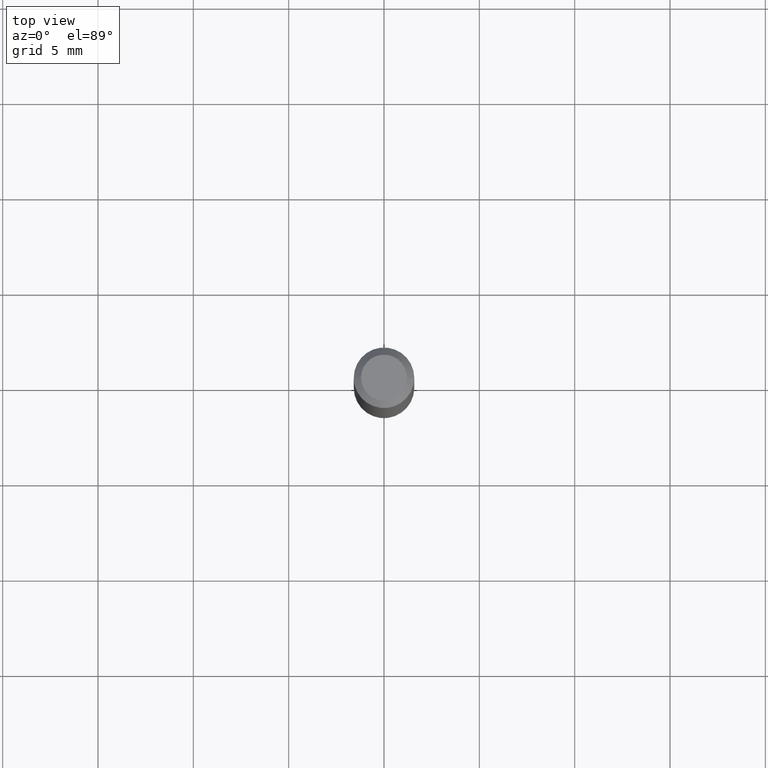
[diagram: clean part render]
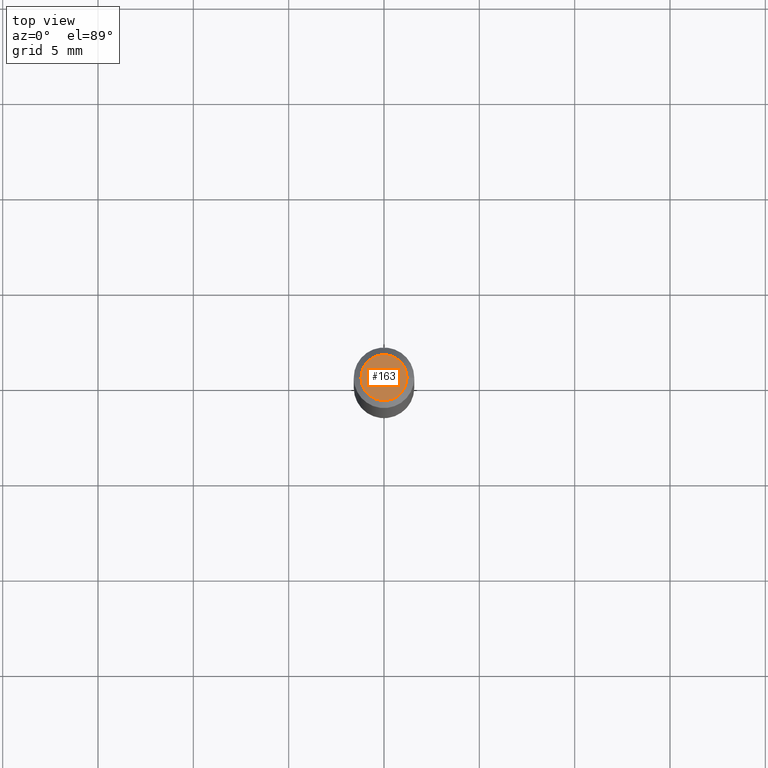
[diagram: same view with one face highlighted and labeled with its STEP entity id]
A machine part, top view. The second image highlights one B-rep face of the part: STEP entity #163.
In plain terms, the highlighted planar face has unit normal (0, -0, -1).
Its self-contained STEP definition (entity closure, byte-faithful):
#95 = CARTESIAN_POINT ( 'NONE',  ( -3.223020679335594837E-45, 4.601619341103081537E-31, 1.317956160873471783E-16 ) ) ;
#105 = ORIENTED_EDGE ( 'NONE', *, *, #134, .T. ) ;
#120 = DIRECTION ( 'NONE',  ( 1.000000000000000000, -6.982962677686267499E-15, 4.884662768193073002E-29 ) ) ;
#134 = EDGE_CURVE ( 'NONE', #332, #323, #459, .T. ) ;
#150 = EDGE_LOOP ( 'NONE', ( #262, #105 ) ) ;
#163 = ADVANCED_FACE ( 'NONE', ( #442 ), #340, .F. ) ;
#167 = DIRECTION ( 'NONE',  ( -2.445468806185136597E-29, 3.491481338843145583E-15, 1.000000000000000000 ) ) ;
#191 = CARTESIAN_POINT ( 'NONE',  ( -3.223020679335594837E-45, 4.601619341103081537E-31, 1.317956160873471783E-16 ) ) ;
#226 = AXIS2_PLACEMENT_3D ( 'NONE', #95, #167, #241 ) ;
#241 = DIRECTION ( 'NONE',  ( 1.000000000000000000, -6.982962677686267499E-15, 4.884662768193073002E-29 ) ) ;
#255 = CARTESIAN_POINT ( 'NONE',  ( 3.316907271900976096E-16, 0.04749999999999999362, -9.994755555137580731E-17 ) ) ;
#262 = ORIENTED_EDGE ( 'NONE', *, *, #274, .T. ) ;
#268 = DIRECTION ( 'NONE',  ( -1.000000000000000000, 6.982962677686265922E-15, -4.876176775795935793E-29 ) ) ;
#274 = EDGE_CURVE ( 'NONE', #323, #332, #278, .T. ) ;
#278 = CIRCLE ( 'NONE', #226, 0.04749999999999999362 ) ;
#301 = DIRECTION ( 'NONE',  ( 2.438088387897960049E-29, -3.491481338843145188E-15, -1.000000000000000000 ) ) ;
#323 = VERTEX_POINT ( 'NONE', #375 ) ;
#332 = VERTEX_POINT ( 'NONE', #333 ) ;
#333 = CARTESIAN_POINT ( 'NONE',  ( 0.04749999999999999362, -4.035134999187576158E-16, 1.317956160873497667E-16 ) ) ;
#340 = PLANE ( 'NONE',  #352 ) ;
#352 = AXIS2_PLACEMENT_3D ( 'NONE', #255, #301, #268 ) ;
#375 = CARTESIAN_POINT ( 'NONE',  ( -0.04749999999999999362, 3.578768372314212971E-16, 1.317956160873447624E-16 ) ) ;
#414 = DIRECTION ( 'NONE',  ( -2.445468806185136597E-29, 3.491481338843145583E-15, 1.000000000000000000 ) ) ;
#442 = FACE_OUTER_BOUND ( 'NONE', #150, .T. ) ;
#453 = AXIS2_PLACEMENT_3D ( 'NONE', #191, #414, #120 ) ;
#459 = CIRCLE ( 'NONE', #453, 0.04749999999999999362 ) ;